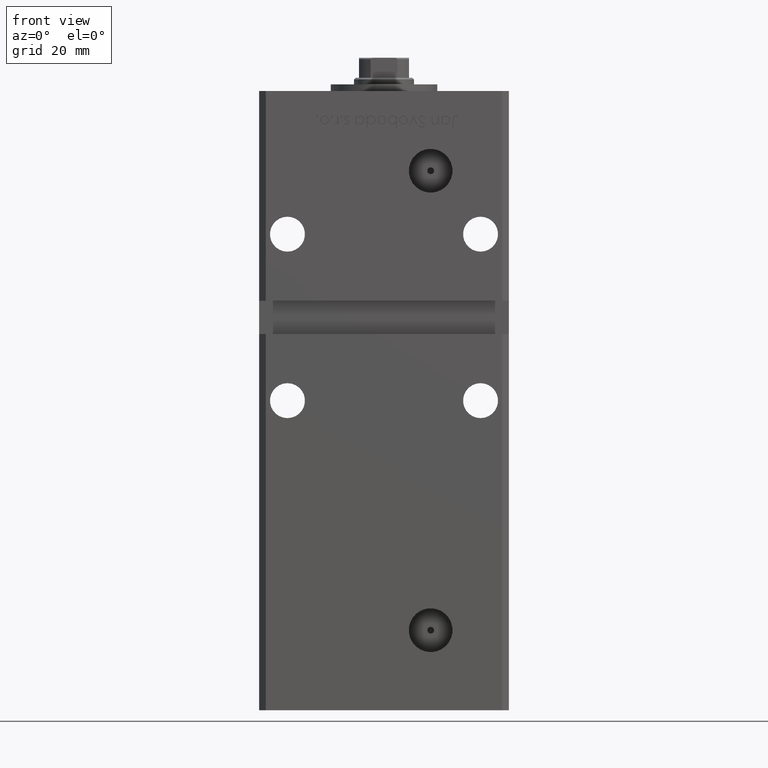
[diagram: clean part render]
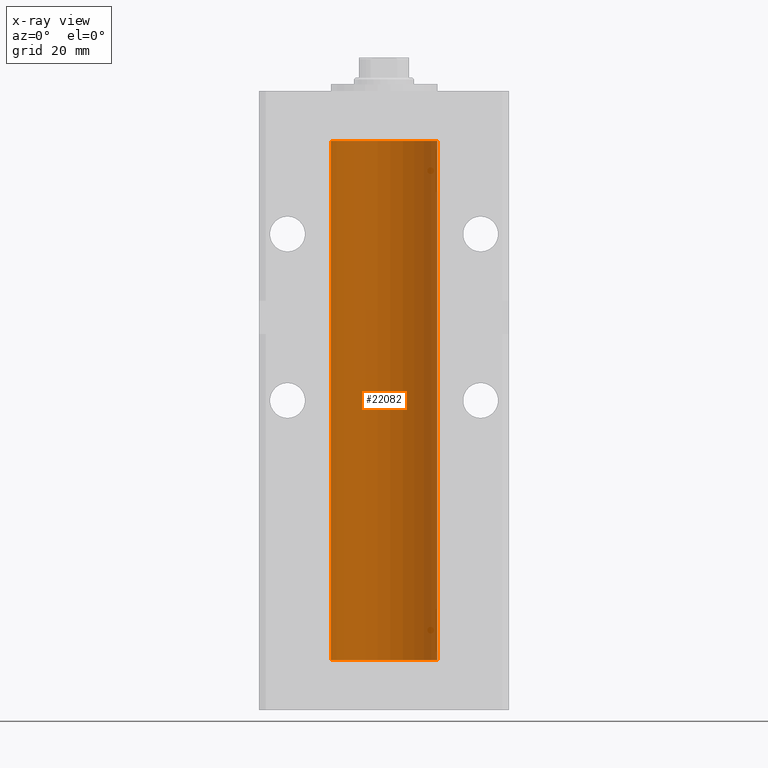
[diagram: x-ray — body ghosted, one internal face saturated and labeled with its STEP entity id]
A machine part, front view, then the same camera in x-ray: the body is ghosted and one INTERNAL B-rep face — a face not visible from any outside direction — is saturated and labeled: STEP entity #22082.
In plain terms, the highlighted cylindrical surface (partial cylindrical patch) has radius 16 mm, axis along (-0, -0, -1).
Its self-contained STEP definition (entity closure, byte-faithful):
#1047 = CYLINDRICAL_SURFACE ( 'NONE', #17655, 16.00000000000000000 ) ;
#3477 = LINE ( 'NONE', #20156, #4194 ) ;
#4194 = VECTOR ( 'NONE', #16384, 1000.000000000000000 ) ;
#4351 = CARTESIAN_POINT ( 'NONE',  ( 16.00000000000000000, 1.959434878635765131E-15, 156.0000000000000000 ) ) ;
#4808 = DIRECTION ( 'NONE',  ( -0.000000000000000000, -0.000000000000000000, -1.000000000000000000 ) ) ;
#8385 = LINE ( 'NONE', #4351, #22420 ) ;
#9179 = AXIS2_PLACEMENT_3D ( 'NONE', #13256, #29664, #50370 ) ;
#11149 = ORIENTED_EDGE ( 'NONE', *, *, #39504, .F. ) ;
#12616 = CARTESIAN_POINT ( 'NONE',  ( 0.000000000000000000, 0.000000000000000000, 156.0000000000000000 ) ) ;
#13256 = CARTESIAN_POINT ( 'NONE',  ( 0.000000000000000000, 0.000000000000000000, 0.000000000000000000 ) ) ;
#16384 = DIRECTION ( 'NONE',  ( -0.000000000000000000, -0.000000000000000000, -1.000000000000000000 ) ) ;
#16621 = CARTESIAN_POINT ( 'NONE',  ( 0.000000000000000000, 0.000000000000000000, 156.0000000000000000 ) ) ;
#17214 = VERTEX_POINT ( 'NONE', #52457 ) ;
#17470 = DIRECTION ( 'NONE',  ( -1.000000000000000000, 0.000000000000000000, 0.000000000000000000 ) ) ;
#17655 = AXIS2_PLACEMENT_3D ( 'NONE', #12616, #4808, #17470 ) ;
#20156 = CARTESIAN_POINT ( 'NONE',  ( -16.00000000000000000, 0.000000000000000000, 156.0000000000000000 ) ) ;
#21828 = VERTEX_POINT ( 'NONE', #35563 ) ;
#22082 = ADVANCED_FACE ( 'NONE', ( #25246 ), #1047, .F. ) ;
#22420 = VECTOR ( 'NONE', #49534, 1000.000000000000000 ) ;
#25246 = FACE_OUTER_BOUND ( 'NONE', #43596, .T. ) ;
#25861 = EDGE_CURVE ( 'NONE', #26832, #21828, #32367, .T. ) ;
#26431 = AXIS2_PLACEMENT_3D ( 'NONE', #16621, #28720, #29800 ) ;
#26832 = VERTEX_POINT ( 'NONE', #32046 ) ;
#28720 = DIRECTION ( 'NONE',  ( -0.000000000000000000, 0.000000000000000000, 1.000000000000000000 ) ) ;
#29664 = DIRECTION ( 'NONE',  ( -0.000000000000000000, 0.000000000000000000, 1.000000000000000000 ) ) ;
#29800 = DIRECTION ( 'NONE',  ( 1.000000000000000000, 0.000000000000000000, 0.000000000000000000 ) ) ;
#32046 = CARTESIAN_POINT ( 'NONE',  ( 16.00000000000000000, 1.959434878635765131E-15, 0.000000000000000000 ) ) ;
#32093 = EDGE_CURVE ( 'NONE', #49531, #17214, #45284, .T. ) ;
#32367 = CIRCLE ( 'NONE', #9179, 16.00000000000000000 ) ;
#35563 = CARTESIAN_POINT ( 'NONE',  ( -16.00000000000000000, 0.000000000000000000, 0.000000000000000000 ) ) ;
#36984 = ORIENTED_EDGE ( 'NONE', *, *, #48434, .T. ) ;
#39161 = CARTESIAN_POINT ( 'NONE',  ( 16.00000000000000000, 1.959434878635765131E-15, 156.0000000000000000 ) ) ;
#39504 = EDGE_CURVE ( 'NONE', #49531, #26832, #8385, .T. ) ;
#42773 = ORIENTED_EDGE ( 'NONE', *, *, #25861, .F. ) ;
#43596 = EDGE_LOOP ( 'NONE', ( #11149, #50691, #36984, #42773 ) ) ;
#45284 = CIRCLE ( 'NONE', #26431, 16.00000000000000000 ) ;
#48434 = EDGE_CURVE ( 'NONE', #17214, #21828, #3477, .T. ) ;
#49531 = VERTEX_POINT ( 'NONE', #39161 ) ;
#49534 = DIRECTION ( 'NONE',  ( -0.000000000000000000, -0.000000000000000000, -1.000000000000000000 ) ) ;
#50370 = DIRECTION ( 'NONE',  ( 1.000000000000000000, 0.000000000000000000, 0.000000000000000000 ) ) ;
#50691 = ORIENTED_EDGE ( 'NONE', *, *, #32093, .T. ) ;
#52457 = CARTESIAN_POINT ( 'NONE',  ( -16.00000000000000000, 0.000000000000000000, 156.0000000000000000 ) ) ;